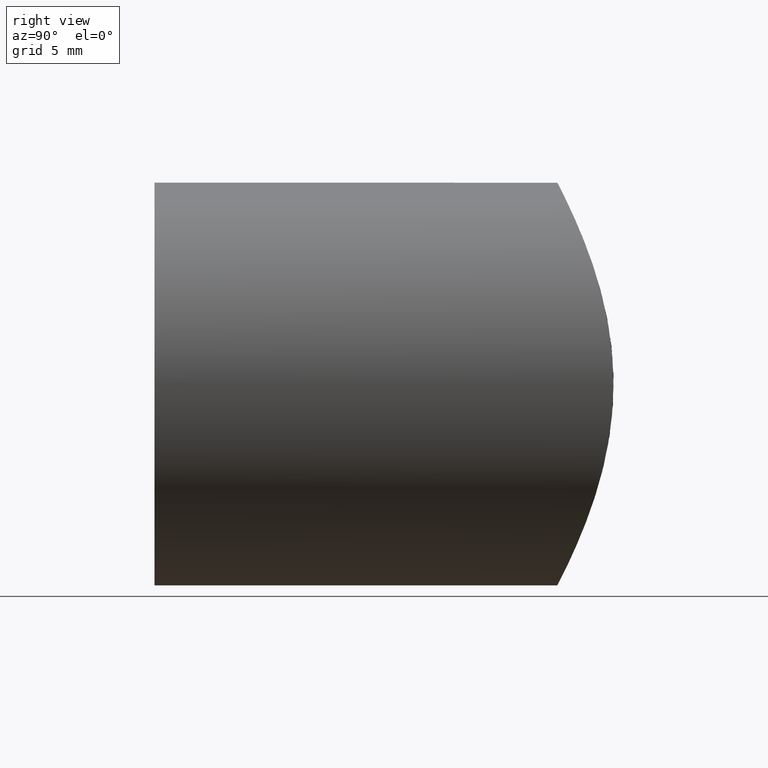
[diagram: clean part render]
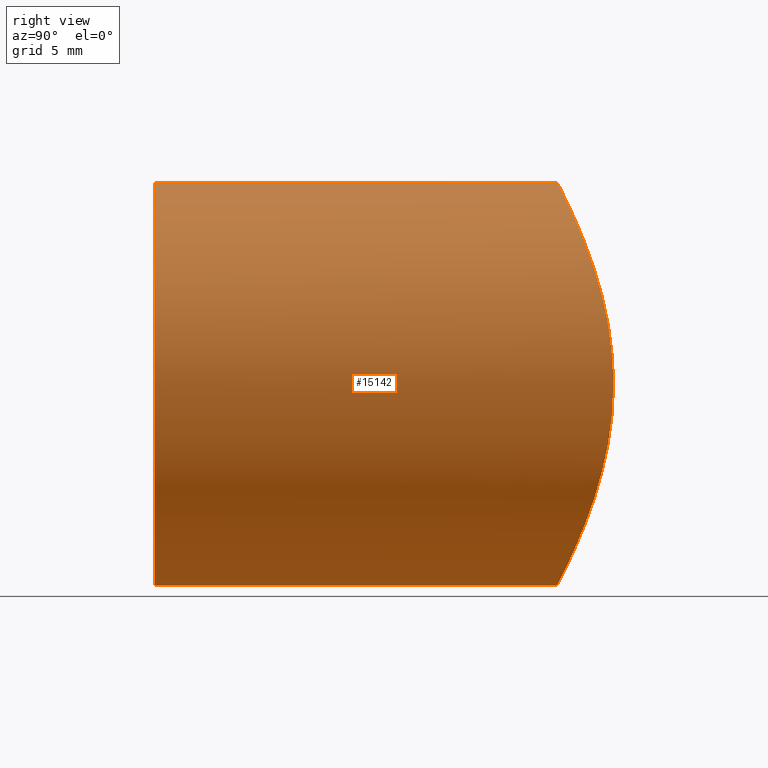
[diagram: same view with one face highlighted and labeled with its STEP entity id]
A machine part, right view. The second image highlights one B-rep face of the part: STEP entity #15142.
In plain terms, the highlighted cylindrical surface (bore or boss wall) has radius 12.5 mm, axis along (-0, -1, -0).
Its self-contained STEP definition (entity closure, byte-faithful):
#146 = CYLINDRICAL_SURFACE ( 'NONE', #1764, 12.50000000000000000 ) ;
#242 = CARTESIAN_POINT ( 'NONE',  ( 12.39939560149940334, 28.42610661434584429, 1.636956017459162416 ) ) ;
#252 = CARTESIAN_POINT ( 'NONE',  ( -3.316877259944503109, 25.21483071661616648, -12.08057711187187522 ) ) ;
#296 = CARTESIAN_POINT ( 'NONE',  ( 11.69463221032095035, 28.01968349082272169, 4.433206286189506962 ) ) ;
#311 = CARTESIAN_POINT ( 'NONE',  ( -5.421010862427522170E-16, 24.99999999999999645, -12.50000000000000178 ) ) ;
#349 = CARTESIAN_POINT ( 'NONE',  ( -2.042669042519713596, 25.08308288046928425, 12.33891662597604189 ) ) ;
#396 = CARTESIAN_POINT ( 'NONE',  ( 0.8701867918572698812, 25.00139095811006129, 12.49731265922300594 ) ) ;
#444 = CARTESIAN_POINT ( 'NONE',  ( 12.16623829432023030, 28.28821014725352612, -2.898783021241122970 ) ) ;
#1068 = VERTEX_POINT ( 'NONE', #8717 ) ;
#1335 = CARTESIAN_POINT ( 'NONE',  ( -10.16369364889730242, 27.24147719938138223, -7.287758421890151439 ) ) ;
#1427 = CARTESIAN_POINT ( 'NONE',  ( 12.07568711241505177, 28.23542578517956514, 3.255345404598888326 ) ) ;
#1480 = CARTESIAN_POINT ( 'NONE',  ( 2.880084786186520418, 25.16890301952331654, -12.17068015586779772 ) ) ;
#1530 = CARTESIAN_POINT ( 'NONE',  ( -4.048937038016213741, 25.32909628045069894, 11.85496764630669020 ) ) ;
#1579 = CARTESIAN_POINT ( 'NONE',  ( 5.594287980704880425, 25.64427812082080393, -11.20816533570559237 ) ) ;
#1632 = CARTESIAN_POINT ( 'NONE',  ( 9.923142205795819848, 27.13111103054635720, 7.612074174934306825 ) ) ;
#1764 = AXIS2_PLACEMENT_3D ( 'NONE', #10364, #11350, #15343 ) ;
#1840 = AXIS2_PLACEMENT_3D ( 'NONE', #2032, #15081, #13800 ) ;
#2032 = CARTESIAN_POINT ( 'NONE',  ( 0.000000000000000000, 0.000000000000000000, 0.000000000000000000 ) ) ;
#2396 = CARTESIAN_POINT ( 'NONE',  ( -12.40093975770249912, 28.42703164710895791, -1.625193573246791034 ) ) ;
#2518 = CARTESIAN_POINT ( 'NONE',  ( -5.595272729540674561, 25.65417096119978524, -11.18531521167290066 ) ) ;
#2612 = CARTESIAN_POINT ( 'NONE',  ( 8.560607551957422956, 26.56613982061724855, -9.117340885081240742 ) ) ;
#2662 = CARTESIAN_POINT ( 'NONE',  ( 5.616393516081356729, 25.64972558784733536, 11.19673421751229903 ) ) ;
#2717 = CARTESIAN_POINT ( 'NONE',  ( -6.290458467577763280, 25.82310979107226956, 10.83203505537226086 ) ) ;
#2766 = CARTESIAN_POINT ( 'NONE',  ( 12.17629244726874660, 28.29408420261459156, 2.856247619983873332 ) ) ;
#2820 = CARTESIAN_POINT ( 'NONE',  ( 12.48103956478300702, 28.47517425164690863, 0.8051631312347458103 ) ) ;
#3081 = CARTESIAN_POINT ( 'NONE',  ( -12.50113647660908178, 28.48737459274473949, -0.3784457863119011223 ) ) ;
#3702 = CARTESIAN_POINT ( 'NONE',  ( -0.8415633137906161076, 25.01104361446218149, -12.47870299761530433 ) ) ;
#3765 = EDGE_LOOP ( 'NONE', ( #13904 ) ) ;
#3795 = CARTESIAN_POINT ( 'NONE',  ( 9.905737200678290222, 27.12327709735981074, -7.634650847773372107 ) ) ;
#3845 = CARTESIAN_POINT ( 'NONE',  ( 3.322960808794963583, 25.22639354888726615, 12.05726743121238265 ) ) ;
#3896 = CARTESIAN_POINT ( 'NONE',  ( -8.264077568507033789, 26.44978608018516653, 9.412695405477595756 ) ) ;
#3922 = CARTESIAN_POINT ( 'NONE',  ( -11.36069409278679743, 27.83828525848094415, 5.229597903835152550 ) ) ;
#3961 = CARTESIAN_POINT ( 'NONE',  ( -12.39229586063315125, 28.42185618982530215, 1.689128689021135443 ) ) ;
#4000 = CARTESIAN_POINT ( 'NONE',  ( 9.412192866964701921, 26.90790369320749775, 8.235475087461983534 ) ) ;
#4624 = CARTESIAN_POINT ( 'NONE',  ( -10.58722758480828752, 27.44295697200132977, 6.657615752389725472 ) ) ;
#4854 = CARTESIAN_POINT ( 'NONE',  ( -1.676951933329635214, 25.05466276626705024, -12.39411511674444810 ) ) ;
#5015 = CARTESIAN_POINT ( 'NONE',  ( 12.06284593198464528, 28.22800179751478566, -3.302785208884865931 ) ) ;
#5040 = CARTESIAN_POINT ( 'NONE',  ( -11.18556598586050654, 27.74549956250869442, 5.594425883101207475 ) ) ;
#5061 = CARTESIAN_POINT ( 'NONE',  ( 2.916893301379968051, 25.17329496480514450, 12.16203323285879279 ) ) ;
#5112 = CARTESIAN_POINT ( 'NONE',  ( 7.317373504727924249, 26.13256476786166260, -10.14252889460935414 ) ) ;
#5148 = CARTESIAN_POINT ( 'NONE',  ( -12.33897836552499427, 28.38991737696543183, -2.042544866178403140 ) ) ;
#5169 = CARTESIAN_POINT ( 'NONE',  ( 4.463086516404187520, 25.41286688508516178, -11.68324080886737804 ) ) ;
#5170 = EDGE_CURVE ( 'NONE', #12404, #12404, #5751, .T. ) ;
#5197 = CARTESIAN_POINT ( 'NONE',  ( -10.81973109692052049, 27.55827660612012764, -6.272818569617440332 ) ) ;
#5212 = CARTESIAN_POINT ( 'NONE',  ( 3.280682860040508686, 25.22050641012258154, -12.06894086756878970 ) ) ;
#5745 = CARTESIAN_POINT ( 'NONE',  ( -12.48178325670625632, 28.47562429088371871, -0.7935034702485466163 ) ) ;
#5751 = B_SPLINE_CURVE_WITH_KNOTS ( 'NONE', 3,
 ( #9743, #8698, #7350, #1480, #5212, #6424, #5169, #1579, #6320, #5112, #13498, #8545, #2612, #10957, #6214, #3795, #14622, #6371, #12137, #12242, #13448, #5015, #444, #11163, #9801, #14520, #2820, #242, #7403, #2766, #1427, #8751, #296, #14674, #7555, #8595, #1632, #4000, #9954, #12342, #9905, #12190, #2662, #11004, #7505, #3845, #5061, #13393, #396, #6268, #14567, #7456, #349, #8644, #1530, #9853, #2717, #11054, #3896, #9069, #8227, #4624, #7228, #5040, #3922, #13835, #10308, #11701, #3961, #13876, #11369, #3081, #5745, #2396, #5148, #8945, #9108, #11859, #13583, #5197, #14755, #1335, #13405, #7417, #8507, #9605, #7469, #13204, #11998, #2518, #7362, #10861, #252, #13250, #4854, #3702, #13301, #311 ),
 .UNSPECIFIED., .T., .F.,
 ( 4, 2, 2, 2, 2, 2, 2, 2, 2, 2, 2, 2, 2, 2, 2, 2, 2, 2, 2, 2, 2, 2, 2, 2, 2, 2, 2, 2, 2, 2, 2, 2, 2, 2, 2, 2, 2, 2, 2, 2, 2, 2, 2, 2, 2, 2, 2, 2, 4 ),
 ( 0.000000000000000000, 0.002486133216992815823, 0.003729199825489223734, 0.004972266433985631645, 0.007458399650978449202, 0.008701466259474861450, 0.009944532867971273699, 0.01118759947646768421, 0.01243066608496409993, 0.01491679930195692269, 0.01615986591045333320, 0.01740293251894974719, 0.01988906573594256821, 0.02113213234443898220, 0.02237519895293539271, 0.02361826556143180669, 0.02486133216992821721, 0.02734746538692104170, 0.02859053199541745569, 0.02983359860391387314, 0.03231973182090669416, 0.03480586503789952213, 0.03604893164639592917, 0.03729199825489233622, 0.03977813147188515724, 0.04102119808038157123, 0.04226426468887797133, 0.04475039790587078542, 0.04723653112286360645, 0.04972266433985642053, 0.05220879755684923462, 0.05345186416534564167, 0.05469493077384204871, 0.05718106399083487668, 0.05842413059933129066, 0.05966719720782771158, 0.06091026381632413250, 0.06215333042482053955, 0.06463946364181336057, 0.06588253025030978149, 0.06712559685880620242, 0.06836866346730260946, 0.06961173007579903038, 0.07209786329279185835, 0.07334092990128826539, 0.07458399650978467244, 0.07707012972677750040, 0.07831319633527390744, 0.07955626294377031449 ),
 .UNSPECIFIED. ) ;
#6095 = FACE_OUTER_BOUND ( 'NONE', #9969, .T. ) ;
#6214 = CARTESIAN_POINT ( 'NONE',  ( 9.394847521644631883, 26.90057323516754550, -8.255202184159763590 ) ) ;
#6268 = CARTESIAN_POINT ( 'NONE',  ( -0.3758445865019326981, 24.99935297399902723, 12.50125005891698571 ) ) ;
#6320 = CARTESIAN_POINT ( 'NONE',  ( 6.306957372526916572, 25.82748068079614256, -10.82273894371697587 ) ) ;
#6348 = CIRCLE ( 'NONE', #1840, 12.50000000000000000 ) ;
#6371 = CARTESIAN_POINT ( 'NONE',  ( 10.82438516625332880, 27.55592695536653380, -6.303536818163577138 ) ) ;
#6424 = CARTESIAN_POINT ( 'NONE',  ( 4.073928212782698566, 25.34271850014701144, -11.82477579534296375 ) ) ;
#7228 = CARTESIAN_POINT ( 'NONE',  ( -10.79939258952037662, 27.54808700369298791, 6.307741837057440293 ) ) ;
#7350 = CARTESIAN_POINT ( 'NONE',  ( 1.666427008392849851, 25.04383638825330038, -12.41589289394556062 ) ) ;
#7362 = CARTESIAN_POINT ( 'NONE',  ( -5.226925829154962067, 25.56930795605689966, -11.36202694756624076 ) ) ;
#7403 = CARTESIAN_POINT ( 'NONE',  ( 12.33814508041328928, 28.38942444237835261, 2.047052564725865498 ) ) ;
#7417 = CARTESIAN_POINT ( 'NONE',  ( -9.411987761562494725, 26.90781012069027156, -8.235748521031602820 ) ) ;
#7456 = CARTESIAN_POINT ( 'NONE',  ( -1.630651670391572772, 25.05147306847736033, 12.40031129654895814 ) ) ;
#7469 = CARTESIAN_POINT ( 'NONE',  ( -7.670003217709699506, 26.23967696440638875, -9.903237437807751675 ) ) ;
#7505 = CARTESIAN_POINT ( 'NONE',  ( 4.109752741455175773, 25.34892971800192285, 11.81226899662650709 ) ) ;
#7555 = CARTESIAN_POINT ( 'NONE',  ( 10.83888041841364469, 27.56323408702176891, 6.278582914400741899 ) ) ;
#7973 = EDGE_CURVE ( 'NONE', #1068, #1068, #6348, .T. ) ;
#8227 = CARTESIAN_POINT ( 'NONE',  ( -9.909193422454752209, 27.12091001598058426, 7.662299098335449088 ) ) ;
#8507 = CARTESIAN_POINT ( 'NONE',  ( -9.139284782924375961, 26.79403560448592359, -8.537292556855806680 ) ) ;
#8545 = CARTESIAN_POINT ( 'NONE',  ( 8.264370655871715599, 26.45571132997648434, -9.386802674788903289 ) ) ;
#8595 = CARTESIAN_POINT ( 'NONE',  ( 10.16551749499001112, 27.24231694392010894, 7.285275361540633376 ) ) ;
#8644 = CARTESIAN_POINT ( 'NONE',  ( -3.260479979501059500, 25.20719823985107055, 12.09564845651103582 ) ) ;
#8698 = CARTESIAN_POINT ( 'NONE',  ( 0.8416139926660903825, 24.99999999999999289, -12.50000000000000355 ) ) ;
#8717 = CARTESIAN_POINT ( 'NONE',  ( 0.000000000000000000, 0.000000000000000000, 12.50000000000000000 ) ) ;
#8751 = CARTESIAN_POINT ( 'NONE',  ( 11.83531592272857580, 28.09846963203419179, 4.042869024516793530 ) ) ;
#8945 = CARTESIAN_POINT ( 'NONE',  ( -12.09488317661415735, 28.24612544468088160, -3.263940484297838562 ) ) ;
#9069 = CARTESIAN_POINT ( 'NONE',  ( -9.399704287991015761, 26.89600599078943333, 8.278850895681333810 ) ) ;
#9108 = CARTESIAN_POINT ( 'NONE',  ( -11.85457163419844306, 28.10669073264531903, -4.048891219634843885 ) ) ;
#9605 = CARTESIAN_POINT ( 'NONE',  ( -8.287351939170422455, 26.45826186860351825, -9.392409702269299387 ) ) ;
#9743 = CARTESIAN_POINT ( 'NONE',  ( -5.421010862427522170E-16, 24.99999999999999645, -12.50000000000000178 ) ) ;
#9801 = CARTESIAN_POINT ( 'NONE',  ( 12.49774924526884057, 28.48532554201312195, -0.8654298213824739294 ) ) ;
#9853 = CARTESIAN_POINT ( 'NONE',  ( -5.575696691962559903, 25.63955654282344199, 11.21809945721803814 ) ) ;
#9871 = CARTESIAN_POINT ( 'NONE',  ( 0.000000000000000000, 24.99999999999999289, -12.50000000000000000 ) ) ;
#9905 = CARTESIAN_POINT ( 'NONE',  ( 7.679687139352855851, 26.24273228511961520, 9.896326891067070974 ) ) ;
#9954 = CARTESIAN_POINT ( 'NONE',  ( 9.143358402556364339, 26.79572744065201562, 8.532821530365845675 ) ) ;
#9969 = EDGE_LOOP ( 'NONE', ( #12575 ) ) ;
#10308 = CARTESIAN_POINT ( 'NONE',  ( -12.07716066025250257, 28.23582747360669387, 3.330140473100303478 ) ) ;
#10364 = CARTESIAN_POINT ( 'NONE',  ( 0.000000000000000000, 49.15000000000000568, 0.000000000000000000 ) ) ;
#10861 = CARTESIAN_POINT ( 'NONE',  ( -4.099037510848100752, 25.33803756378459227, -11.83695617156265634 ) ) ;
#10957 = CARTESIAN_POINT ( 'NONE',  ( 9.125846458580165077, 26.78856738321623610, -8.551539796307114472 ) ) ;
#11004 = CARTESIAN_POINT ( 'NONE',  ( 4.493358900822066460, 25.41862216006217068, 11.67154270457320919 ) ) ;
#11054 = CARTESIAN_POINT ( 'NONE',  ( -7.632636067880914865, 26.22716114424365585, 9.932055065716143716 ) ) ;
#11163 = CARTESIAN_POINT ( 'NONE',  ( 12.41328738822396183, 28.43359788489520312, -1.685670540479231594 ) ) ;
#11350 = DIRECTION ( 'NONE',  ( -0.000000000000000000, -1.000000000000000000, -0.000000000000000000 ) ) ;
#11369 = CARTESIAN_POINT ( 'NONE',  ( -12.49876076068150610, 28.48593744263716232, 0.4501265013655141867 ) ) ;
#11701 = CARTESIAN_POINT ( 'NONE',  ( -12.32893162694468181, 28.38393572538485543, 2.102821018098295358 ) ) ;
#11859 = CARTESIAN_POINT ( 'NONE',  ( -11.38086847299332405, 27.84904600285714693, -5.185983993912954837 ) ) ;
#11877 = FACE_OUTER_BOUND ( 'NONE', #3765, .T. ) ;
#11998 = CARTESIAN_POINT ( 'NONE',  ( -6.316747293375142291, 25.83777653740197167, -10.79430669075418869 ) ) ;
#12137 = CARTESIAN_POINT ( 'NONE',  ( 11.20659804588976449, 27.75461045228879087, -5.596363829670498724 ) ) ;
#12190 = CARTESIAN_POINT ( 'NONE',  ( 6.328959426137783062, 25.83337971956816048, 10.81014121441068099 ) ) ;
#12242 = CARTESIAN_POINT ( 'NONE',  ( 11.67831068887509893, 28.01066302200520042, -4.475638660923357826 ) ) ;
#12342 = CARTESIAN_POINT ( 'NONE',  ( 8.296859981971220321, 26.46183937423682409, 9.383618653070685767 ) ) ;
#12404 = VERTEX_POINT ( 'NONE', #9871 ) ;
#12575 = ORIENTED_EDGE ( 'NONE', *, *, #5170, .T. ) ;
#13204 = CARTESIAN_POINT ( 'NONE',  ( -6.665751520387525275, 25.93550895653356392, -10.58210857748918166 ) ) ;
#13250 = CARTESIAN_POINT ( 'NONE',  ( -2.094311208364735055, 25.08749313957578408, -12.33032299215526173 ) ) ;
#13301 = CARTESIAN_POINT ( 'NONE',  ( -0.4208069963330459129, 24.99999999999999289, -12.50000000000000000 ) ) ;
#13393 = CARTESIAN_POINT ( 'NONE',  ( 1.693364542386430305, 25.04548548441427513, 12.41272702035197284 ) ) ;
#13405 = CARTESIAN_POINT ( 'NONE',  ( -9.923924471011336124, 27.13145673881371422, -7.611096531981374369 ) ) ;
#13448 = CARTESIAN_POINT ( 'NONE',  ( 11.81847010116292296, 28.08899277737386058, -4.091992984200397920 ) ) ;
#13498 = CARTESIAN_POINT ( 'NONE',  ( 7.643601615584862508, 26.23917472201797096, -9.898850495652816051 ) ) ;
#13583 = CARTESIAN_POINT ( 'NONE',  ( -11.20397708090773392, 27.75514085818785404, -5.557493264728316618 ) ) ;
#13800 = DIRECTION ( 'NONE',  ( 0.000000000000000000, 0.000000000000000000, 1.000000000000000000 ) ) ;
#13835 = CARTESIAN_POINT ( 'NONE',  ( -11.83278988928865516, 28.09445903304802528, 4.109907718995604142 ) ) ;
#13876 = CARTESIAN_POINT ( 'NONE',  ( -12.47702995727797948, 28.47275003880019284, 0.8636410543319869015 ) ) ;
#13904 = ORIENTED_EDGE ( 'NONE', *, *, #7973, .T. ) ;
#14520 = CARTESIAN_POINT ( 'NONE',  ( 12.50105946675680713, 28.48732800745124294, 0.3829992845280626446 ) ) ;
#14567 = CARTESIAN_POINT ( 'NONE',  ( -0.7937935283653675400, 25.00941349151189641, 12.48185230467801432 ) ) ;
#14622 = CARTESIAN_POINT ( 'NONE',  ( 10.14872829841706015, 27.23452566915328177, -7.308644647692615237 ) ) ;
#14674 = CARTESIAN_POINT ( 'NONE',  ( 11.22171516179564676, 27.76251763114064985, 5.567231885764334365 ) ) ;
#14755 = CARTESIAN_POINT ( 'NONE',  ( -10.61159664689884607, 27.45488404047154773, -6.618618285412098956 ) ) ;
#15081 = DIRECTION ( 'NONE',  ( 0.000000000000000000, 1.000000000000000000, 0.000000000000000000 ) ) ;
#15142 = ADVANCED_FACE ( 'NONE', ( #11877, #6095 ), #146, .T. ) ;
#15343 = DIRECTION ( 'NONE',  ( 0.000000000000000000, 0.000000000000000000, -1.000000000000000000 ) ) ;